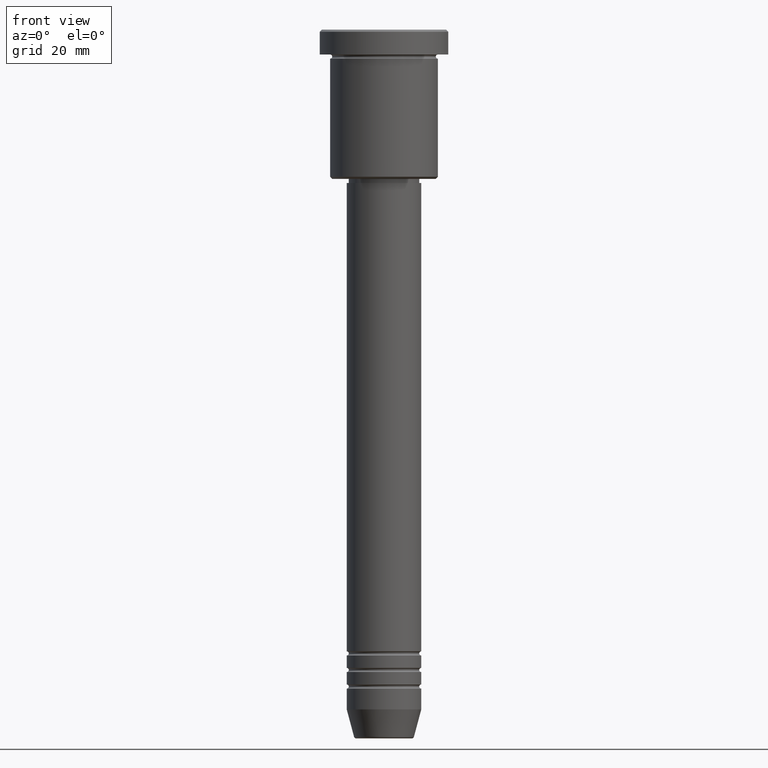
[diagram: clean part render]
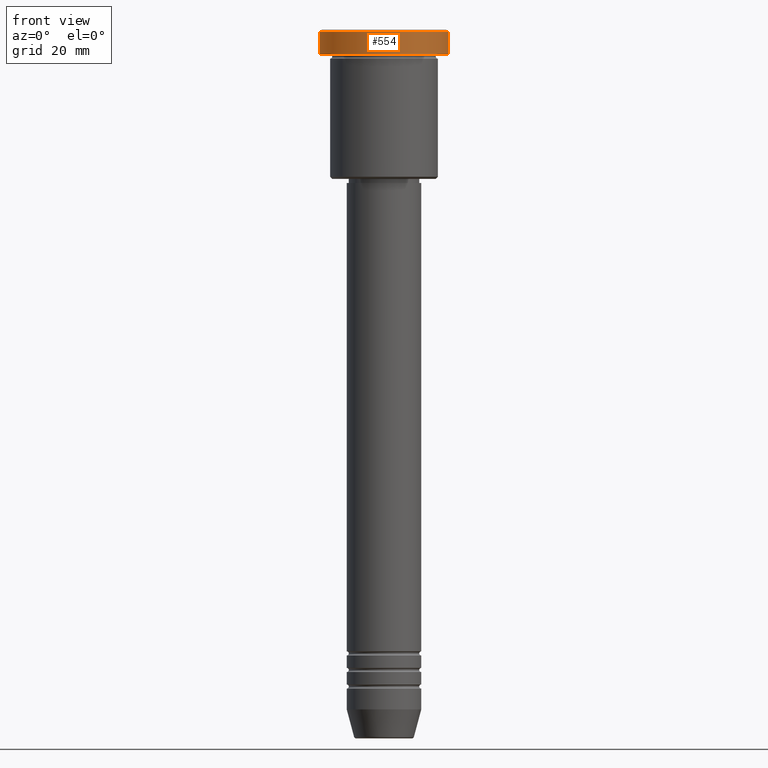
[diagram: same view with one face highlighted and labeled with its STEP entity id]
A machine part, front view. The second image highlights one B-rep face of the part: STEP entity #554.
In plain terms, the highlighted cylindrical surface (partial cylindrical patch) has radius 15.5 mm, axis along (-0, -0, 1).
Its self-contained STEP definition (entity closure, byte-faithful):
#13 = CARTESIAN_POINT ( 'NONE',  ( 15.50000000000000000, 0.000000000000000000, -5.999999999999995559 ) ) ;
#21 = VERTEX_POINT ( 'NONE', #319 ) ;
#69 = DIRECTION ( 'NONE',  ( -0.000000000000000000, -0.000000000000000000, 1.000000000000000000 ) ) ;
#93 = ORIENTED_EDGE ( 'NONE', *, *, #365, .F. ) ;
#177 = EDGE_LOOP ( 'NONE', ( #93, #740, #419, #979 ) ) ;
#203 = EDGE_CURVE ( 'NONE', #781, #21, #320, .T. ) ;
#241 = CIRCLE ( 'NONE', #543, 15.50000000000000000 ) ;
#249 = CARTESIAN_POINT ( 'NONE',  ( 0.000000000000000000, 0.000000000000000000, 0.000000000000000000 ) ) ;
#262 = VECTOR ( 'NONE', #736, 1000.000000000000000 ) ;
#302 = LINE ( 'NONE', #558, #262 ) ;
#319 = CARTESIAN_POINT ( 'NONE',  ( 15.50000000000000000, 0.000000000000000000, -0.4999999999999848455 ) ) ;
#320 = LINE ( 'NONE', #409, #379 ) ;
#344 = AXIS2_PLACEMENT_3D ( 'NONE', #249, #69, #1082 ) ;
#365 = EDGE_CURVE ( 'NONE', #536, #1110, #302, .T. ) ;
#379 = VECTOR ( 'NONE', #784, 1000.000000000000000 ) ;
#409 = CARTESIAN_POINT ( 'NONE',  ( 15.50000000000000000, 0.000000000000000000, 0.000000000000000000 ) ) ;
#419 = ORIENTED_EDGE ( 'NONE', *, *, #203, .T. ) ;
#422 = CIRCLE ( 'NONE', #1088, 15.50000000000000000 ) ;
#509 = DIRECTION ( 'NONE',  ( 0.000000000000000000, 0.000000000000000000, -1.000000000000000000 ) ) ;
#523 = EDGE_CURVE ( 'NONE', #536, #781, #241, .T. ) ;
#536 = VERTEX_POINT ( 'NONE', #1159 ) ;
#543 = AXIS2_PLACEMENT_3D ( 'NONE', #702, #697, #967 ) ;
#554 = ADVANCED_FACE ( 'NONE', ( #723 ), #810, .T. ) ;
#558 = CARTESIAN_POINT ( 'NONE',  ( -15.50000000000000000, 1.898202538678397557E-15, 0.000000000000000000 ) ) ;
#610 = DIRECTION ( 'NONE',  ( 1.000000000000000000, 0.000000000000000000, 0.000000000000000000 ) ) ;
#623 = CARTESIAN_POINT ( 'NONE',  ( 0.000000000000000000, 0.000000000000000000, -0.4999999999999848455 ) ) ;
#697 = DIRECTION ( 'NONE',  ( -0.000000000000000000, -0.000000000000000000, 1.000000000000000000 ) ) ;
#702 = CARTESIAN_POINT ( 'NONE',  ( 0.000000000000000000, 0.000000000000000000, -5.999999999999995559 ) ) ;
#723 = FACE_OUTER_BOUND ( 'NONE', #177, .T. ) ;
#736 = DIRECTION ( 'NONE',  ( -0.000000000000000000, -0.000000000000000000, 1.000000000000000000 ) ) ;
#740 = ORIENTED_EDGE ( 'NONE', *, *, #523, .T. ) ;
#781 = VERTEX_POINT ( 'NONE', #13 ) ;
#784 = DIRECTION ( 'NONE',  ( -0.000000000000000000, -0.000000000000000000, 1.000000000000000000 ) ) ;
#810 = CYLINDRICAL_SURFACE ( 'NONE', #344, 15.50000000000000000 ) ;
#811 = CARTESIAN_POINT ( 'NONE',  ( -15.50000000000000000, 1.898202538678397557E-15, -0.4999999999999848455 ) ) ;
#829 = EDGE_CURVE ( 'NONE', #21, #1110, #422, .T. ) ;
#967 = DIRECTION ( 'NONE',  ( 1.000000000000000000, 0.000000000000000000, 0.000000000000000000 ) ) ;
#979 = ORIENTED_EDGE ( 'NONE', *, *, #829, .T. ) ;
#1082 = DIRECTION ( 'NONE',  ( 1.000000000000000000, 0.000000000000000000, 0.000000000000000000 ) ) ;
#1088 = AXIS2_PLACEMENT_3D ( 'NONE', #623, #509, #610 ) ;
#1110 = VERTEX_POINT ( 'NONE', #811 ) ;
#1159 = CARTESIAN_POINT ( 'NONE',  ( -15.50000000000000000, 1.898202538678397557E-15, -5.999999999999995559 ) ) ;